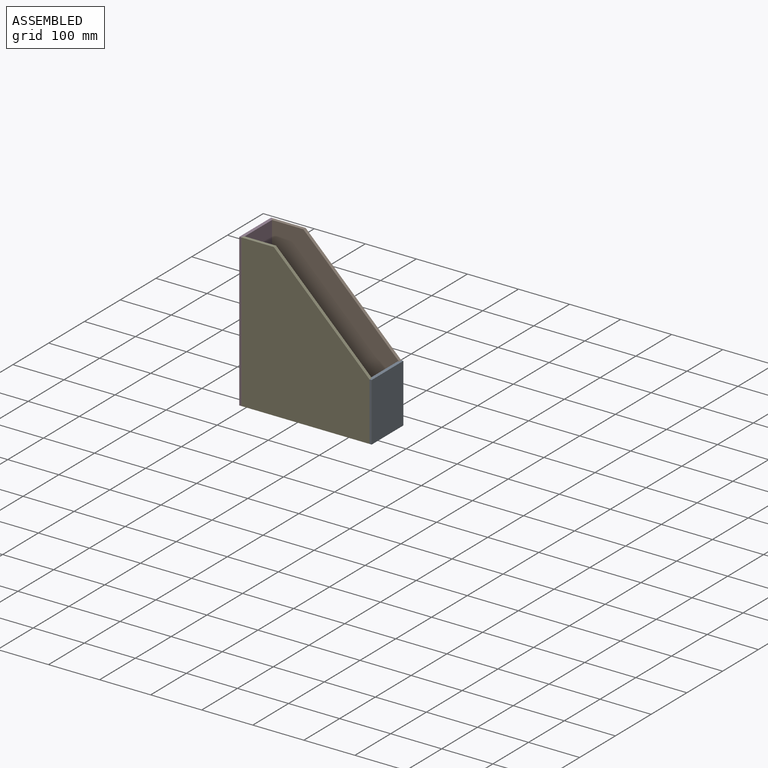
[diagram: assembled view]
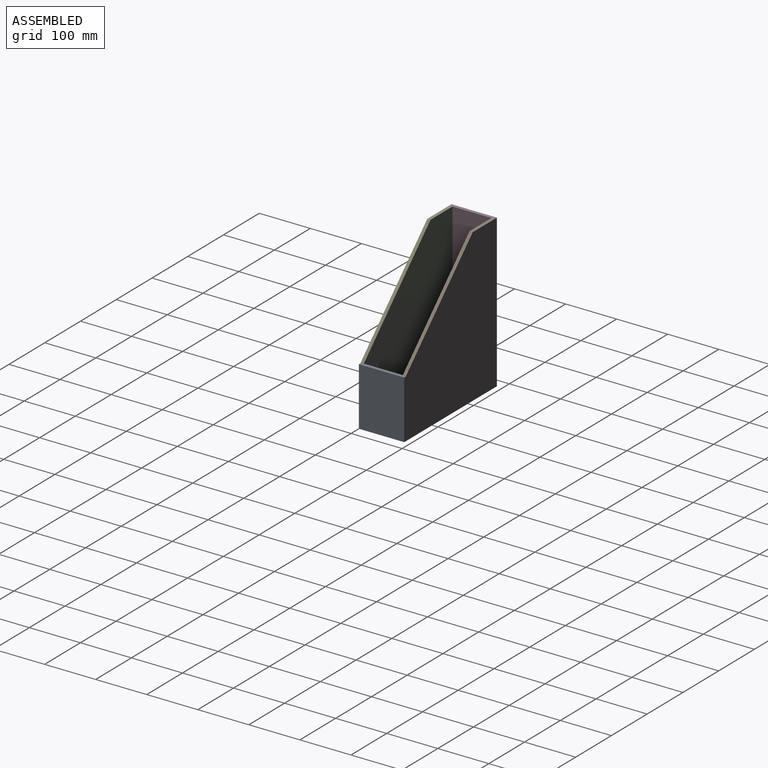
[diagram: assembled view, second angle]
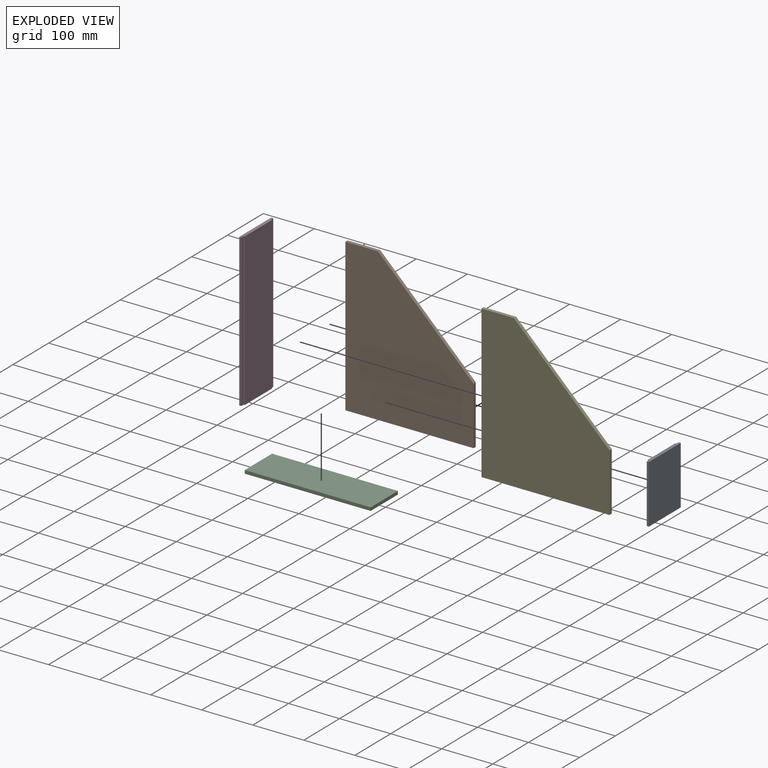
[diagram: exploded view]
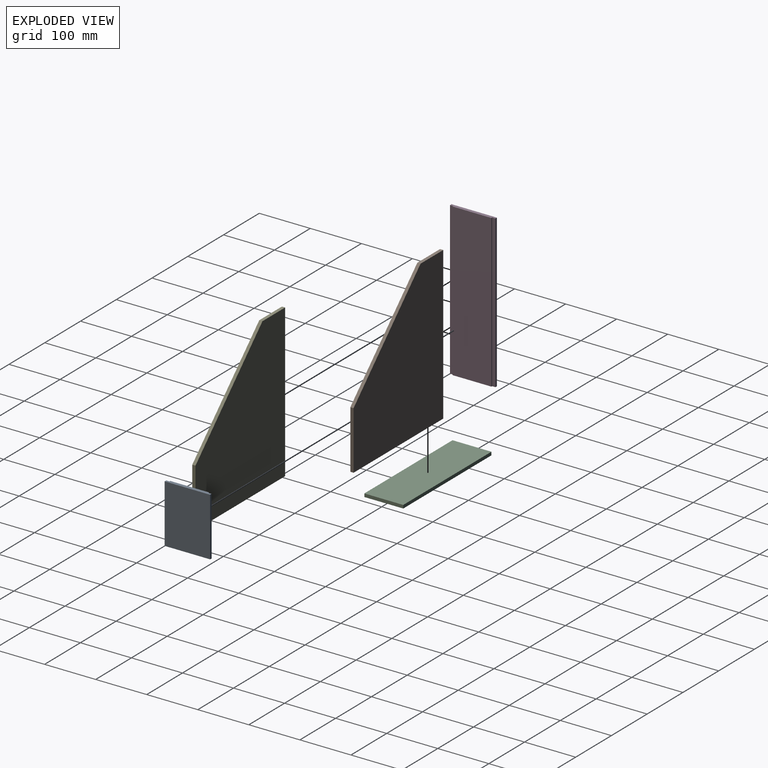
[diagram: exploded view, second angle]
ASSEMBLY  parts=5 mates=5
PART A: 10 faces, bbox 6.4x88.9x114.3 mm
  f0: plane 114.3x6.35mm, normal (-1,0,0), area 725.8mm2, adj f1,f2,f3,f7
  f1: plane 88.9x6.36mm, normal (0,0,1), area 538.3mm2, adj f0,f2,f4,f5,f6,f7,f8,f9
  f2: plane 114.3x4.24mm, normal (0,-1,0), area 484.8mm2, adj f0,f1,f3,f5
  f3: plane 88.9x6.36mm, normal (0,0,-1), area 538.3mm2, adj f0,f2,f4,f5,f6,f7,f8,f9
  f4: plane 114.3x4.24mm, normal (0,1,0), area 484.8mm2, adj f1,f3,f5,f6
  f5: plane 114.3x88.9mm, normal (1,0,0), area 10161.3mm2, adj f1,f2,f3,f4
  f6: plane 114.3x6.35mm, normal (-1,0,0), area 725.8mm2, adj f1,f3,f4,f8
  f7: plane 114.3x2.12mm, normal (0,-1,0), area 241.8mm2, adj f0,f1,f3,f9
  f8: plane 114.3x2.12mm, normal (0,1,0), area 241.8mm2, adj f1,f3,f6,f9
  f9: plane 114.3x76.2mm, normal (-1,0,0), area 8709.7mm2, adj f1,f3,f7,f8
PART B: 7 faces, bbox 250.8x6.4x298.5 mm
  f0: plane 63.5x6.35mm, normal (0,0,1), area 403.2mm2, adj f1,f4,f5,f6
  f1: plane 298.45x6.35mm, normal (-1,0,0), area 1895.2mm2, adj f0,f2,f5,f6
  f2: plane 250.83x6.35mm, normal (0,0,-1), area 1592.7mm2, adj f1,f3,f5,f6
  f3: plane 114.3x6.35mm, normal (1,0,0), area 725.8mm2, adj f2,f4,f5,f6
  f4: plane 187.33x184.15mm, normal (0.7,0,0.71), area 1668mm2, adj f0,f3,f5,f6
  f5: plane 298.45x250.83mm, normal (0,-1,0), area 57610.8mm2, adj f0,f1,f2,f3,f4
  f6: plane 298.45x250.83mm, normal (0,1,0), area 57610.8mm2, adj f0,f1,f2,f3,f4
PART C: 6 faces, bbox 246.6x76.2x6.4 mm
  f0: plane 246.58x6.35mm, normal (0,1,0), area 1565.8mm2, adj f1,f3,f4,f5
  f1: plane 76.2x6.35mm, normal (-1,0,0), area 483.9mm2, adj f0,f2,f4,f5
  f2: plane 246.58x6.35mm, normal (0,-1,0), area 1565.8mm2, adj f1,f3,f4,f5
  f3: plane 76.2x6.35mm, normal (1,0,0), area 483.9mm2, adj f0,f2,f4,f5
  f4: plane 246.58x76.2mm, normal (0,0,1), area 18789.6mm2, adj f0,f1,f2,f3
  f5: plane 246.58x76.2mm, normal (0,0,-1), area 18789.6mm2, adj f0,f1,f2,f3
PART D: 10 faces, bbox 6.4x88.9x298.5 mm
  f0: plane 298.45x6.35mm, normal (1,0,0), area 1895.2mm2, adj f1,f2,f3,f7
  f1: plane 88.9x6.35mm, normal (0,0,1), area 537.6mm2, adj f0,f2,f4,f5,f6,f7,f8,f9
  f2: plane 298.45x4.23mm, normal (0,-1,0), area 1263.5mm2, adj f0,f1,f3,f5
  f3: plane 88.9x6.35mm, normal (0,0,-1), area 537.6mm2, adj f0,f2,f4,f5,f6,f7,f8,f9
  f4: plane 298.45x4.23mm, normal (0,1,0), area 1263.5mm2, adj f1,f3,f5,f6
  f5: plane 298.45x88.9mm, normal (-1,0,0), area 26532.2mm2, adj f1,f2,f3,f4
  f6: plane 298.45x6.35mm, normal (1,0,0), area 1895.2mm2, adj f1,f3,f4,f8
  f7: plane 298.45x2.12mm, normal (0,-1,0), area 631.7mm2, adj f0,f1,f3,f9
  f8: plane 298.45x2.12mm, normal (0,1,0), area 631.7mm2, adj f1,f3,f6,f9
  f9: plane 298.45x76.2mm, normal (1,0,0), area 22741.9mm2, adj f1,f3,f7,f8
PART E: same geometry as B
PLACE A t=(98.42,-42.84,-19.75)mm fixed
PLACE B t=(-152.41,46.06,-19.75)mm
PLACE C t=(-39.24,-36.49,-19.75)mm
PLACE D t=(-152.41,-42.84,-19.75)mm
PLACE E t=(-152.41,-36.49,-19.75)mm
MATE fastened E.f3 <-> A.f0  axis (1,0,0) through (98.42,-36.49,-19.75)mm
MATE fastened B.f1 <-> D.f6  axis (-1,0,0) through (-152.41,39.71,-19.75)mm
MATE fastened A.f6 <-> A.f6  axis (-1,0,0) through (98.42,39.71,-19.75)mm
MATE fastened D.f0 <-> E.f1  axis (1,0,0) through (-152.41,-36.49,-19.75)mm
MATE fastened C.f1 <-> D.f9  axis (-1,0,0) through (-150.29,1.61,-19.75)mm
